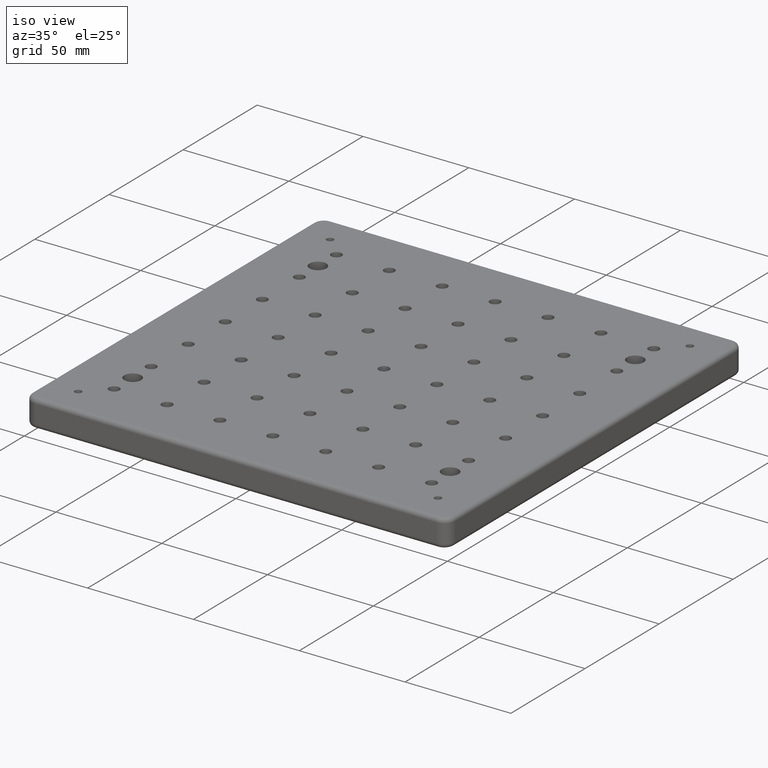
[diagram: clean part render]
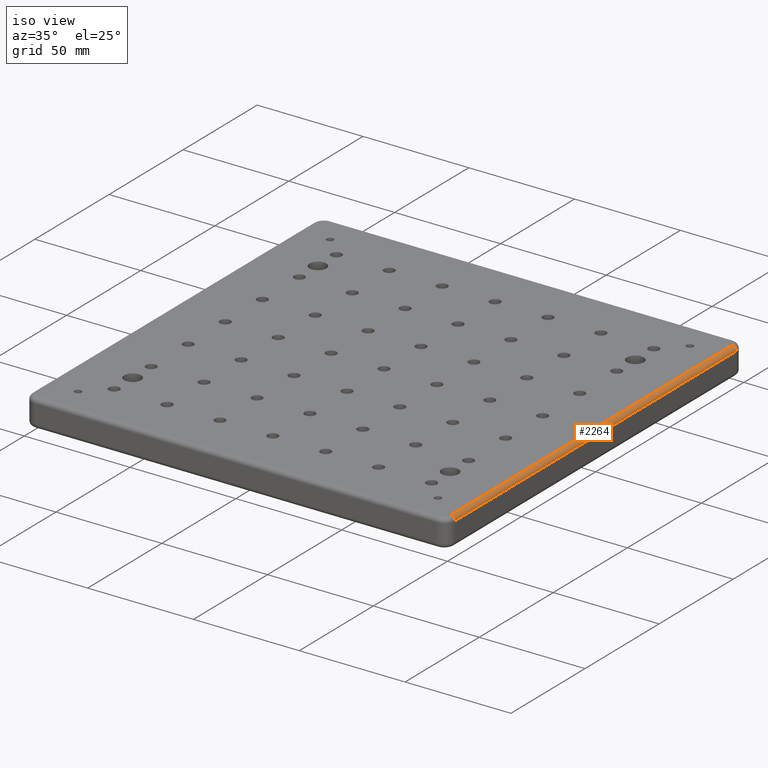
[diagram: same view with one face highlighted and labeled with its STEP entity id]
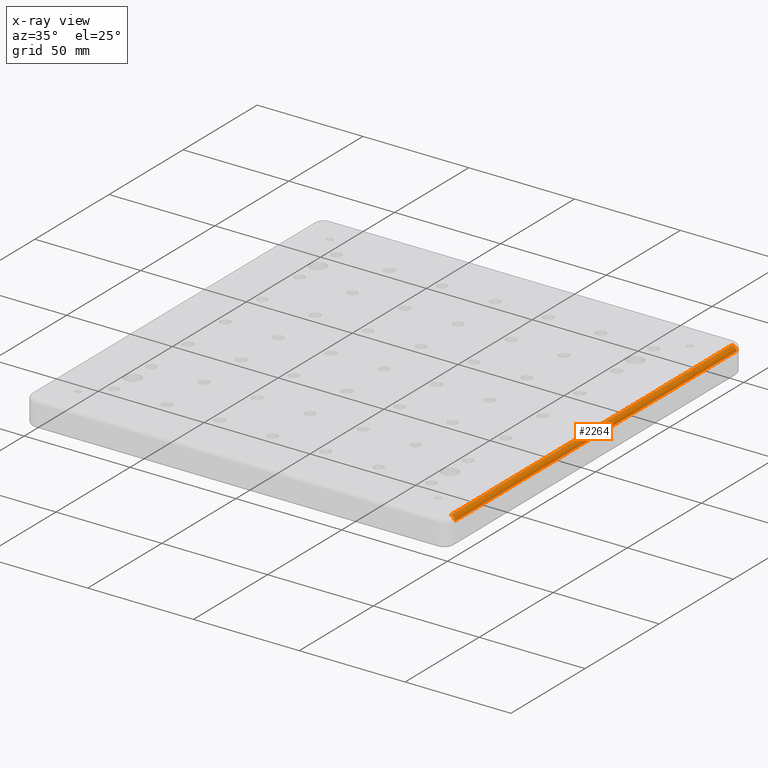
[diagram: x-ray of the same camera — body ghosted, the highlighted face saturated]
A machine part, iso view. The second image highlights one B-rep face of the part: STEP entity #2264.
The next image is the same camera in x-ray: the body ghosted, the highlighted face saturated — about 0% of this face is hidden behind the body in this view.
In plain terms, the highlighted cylindrical surface (edge-blend (fillet) strip) has radius 2 mm, axis along (0, -1, 0).
Its self-contained STEP definition (entity closure, byte-faithful):
#40 = EDGE_LOOP ( 'NONE', ( #4392, #5235, #3922, #4841 ) ) ;
#42 = FACE_OUTER_BOUND ( 'NONE', #40, .T. ) ;
#47 = CARTESIAN_POINT ( 'NONE',  ( 100.0000000000000700, -95.00000000000008500, -2.000000000000001800 ) ) ;
#237 = EDGE_CURVE ( 'NONE', #1772, #2555, #3926, .T. ) ;
#697 = DIRECTION ( 'NONE',  ( 0.0000000000000000000, 1.000000000000000000, 0.0000000000000000000 ) ) ;
#743 = CARTESIAN_POINT ( 'NONE',  ( 100.0000000000000300, -95.00000000000008500, -2.000000000000000000 ) ) ;
#791 = CARTESIAN_POINT ( 'NONE',  ( 97.99999999999997200, 95.00000000000014200, 0.0000000000000000000 ) ) ;
#937 = LINE ( 'NONE', #743, #1505 ) ;
#1110 = AXIS2_PLACEMENT_3D ( 'NONE', #4210, #5054, #1330 ) ;
#1330 = DIRECTION ( 'NONE',  ( 0.0000000000000000000, 0.0000000000000000000, 1.000000000000000000 ) ) ;
#1417 = CARTESIAN_POINT ( 'NONE',  ( 97.99999999999997200, 95.00000000000017100, -2.000000000000000000 ) ) ;
#1505 = VECTOR ( 'NONE', #3601, 1000.000000000000000 ) ;
#1525 = DIRECTION ( 'NONE',  ( 0.0000000000000000000, 0.0000000000000000000, 1.000000000000000000 ) ) ;
#1535 = CIRCLE ( 'NONE', #1551, 2.000000000000000000 ) ;
#1551 = AXIS2_PLACEMENT_3D ( 'NONE', #4017, #697, #1525 ) ;
#1645 = VECTOR ( 'NONE', #4472, 1000.000000000000000 ) ;
#1772 = VERTEX_POINT ( 'NONE', #4687 ) ;
#1928 = EDGE_CURVE ( 'NONE', #4768, #2555, #937, .T. ) ;
#2006 = EDGE_CURVE ( 'NONE', #1772, #4755, #2751, .T. ) ;
#2264 = ADVANCED_FACE ( 'NONE', ( #42 ), #5169, .T. ) ;
#2555 = VERTEX_POINT ( 'NONE', #47 ) ;
#2751 = LINE ( 'NONE', #791, #1645 ) ;
#3414 = DIRECTION ( 'NONE',  ( 2.921639538487251300E-016, -1.000000000000000000, 0.0000000000000000000 ) ) ;
#3490 = DIRECTION ( 'NONE',  ( 1.000000000000000000, 0.0000000000000000000, 0.0000000000000000000 ) ) ;
#3601 = DIRECTION ( 'NONE',  ( 2.921639538487251300E-016, -1.000000000000000000, -0.0000000000000000000 ) ) ;
#3922 = ORIENTED_EDGE ( 'NONE', *, *, #4846, .F. ) ;
#3926 = CIRCLE ( 'NONE', #1110, 2.000000000000000000 ) ;
#4017 = CARTESIAN_POINT ( 'NONE',  ( 97.99999999999997200, 95.00000000000014200, -2.000000000000000000 ) ) ;
#4210 = CARTESIAN_POINT ( 'NONE',  ( 98.00000000000007100, -95.00000000000008500, -2.000000000000000000 ) ) ;
#4392 = ORIENTED_EDGE ( 'NONE', *, *, #237, .T. ) ;
#4472 = DIRECTION ( 'NONE',  ( -2.921639538487251300E-016, 1.000000000000000000, 0.0000000000000000000 ) ) ;
#4687 = CARTESIAN_POINT ( 'NONE',  ( 98.00000000000007100, -95.00000000000008500, 0.0000000000000000000 ) ) ;
#4749 = CARTESIAN_POINT ( 'NONE',  ( 99.99999999999997200, 95.00000000000014200, -2.000000000000003600 ) ) ;
#4755 = VERTEX_POINT ( 'NONE', #5156 ) ;
#4768 = VERTEX_POINT ( 'NONE', #4749 ) ;
#4841 = ORIENTED_EDGE ( 'NONE', *, *, #2006, .F. ) ;
#4846 = EDGE_CURVE ( 'NONE', #4755, #4768, #1535, .T. ) ;
#5041 = AXIS2_PLACEMENT_3D ( 'NONE', #1417, #3414, #3490 ) ;
#5054 = DIRECTION ( 'NONE',  ( 0.0000000000000000000, 1.000000000000000000, 0.0000000000000000000 ) ) ;
#5156 = CARTESIAN_POINT ( 'NONE',  ( 97.99999999999997200, 95.00000000000014200, 0.0000000000000000000 ) ) ;
#5169 = CYLINDRICAL_SURFACE ( 'NONE', #5041, 2.000000000000001800 ) ;
#5235 = ORIENTED_EDGE ( 'NONE', *, *, #1928, .F. ) ;